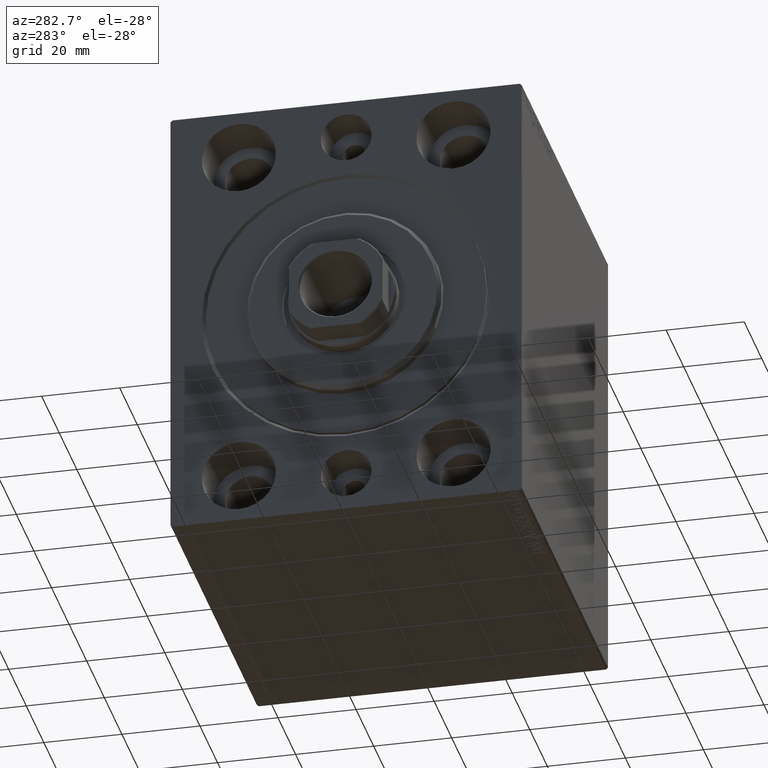
[diagram: clean part render]
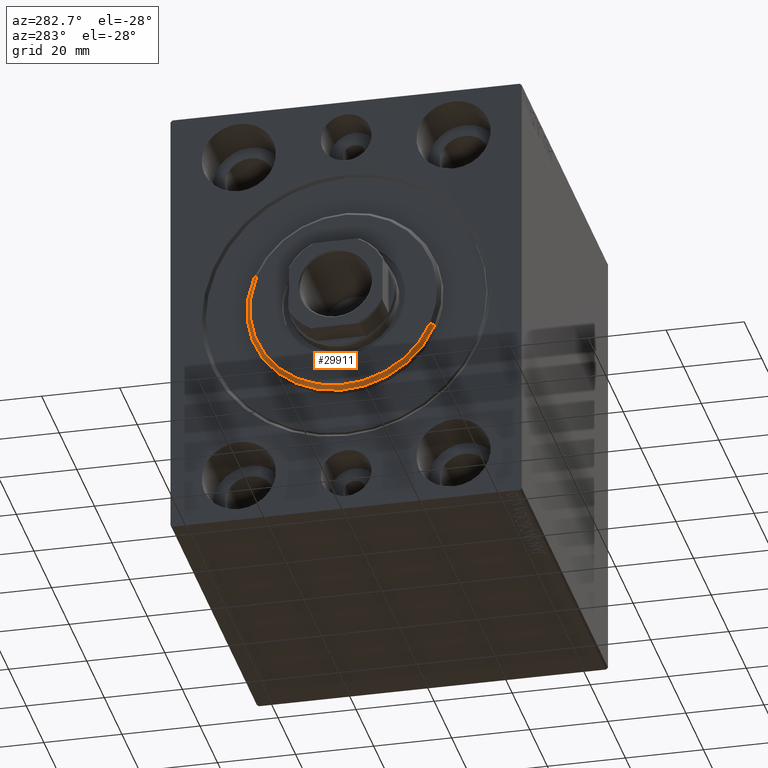
[diagram: same view with one face highlighted and labeled with its STEP entity id]
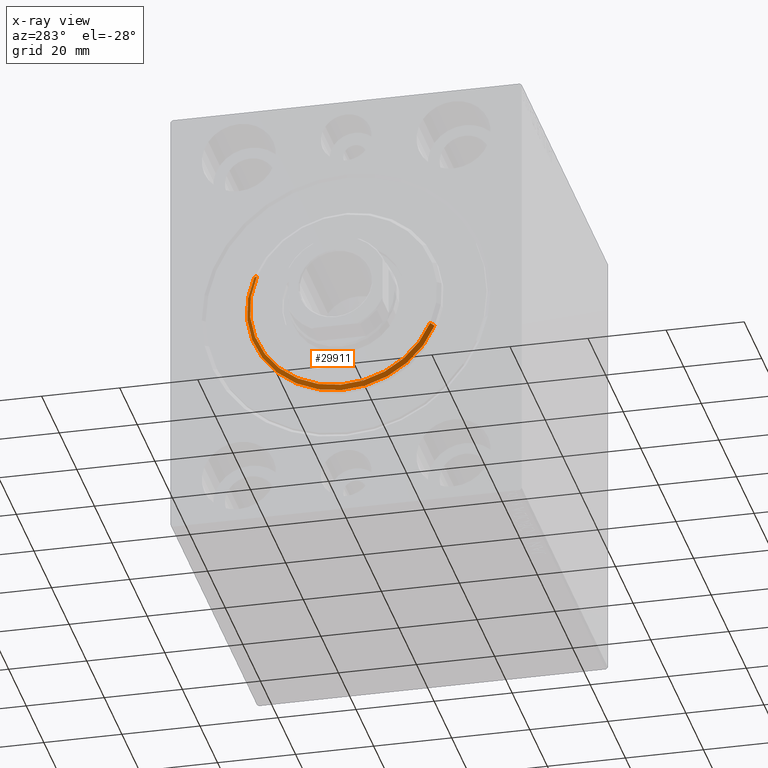
[diagram: x-ray of the same camera — body ghosted, the highlighted face saturated]
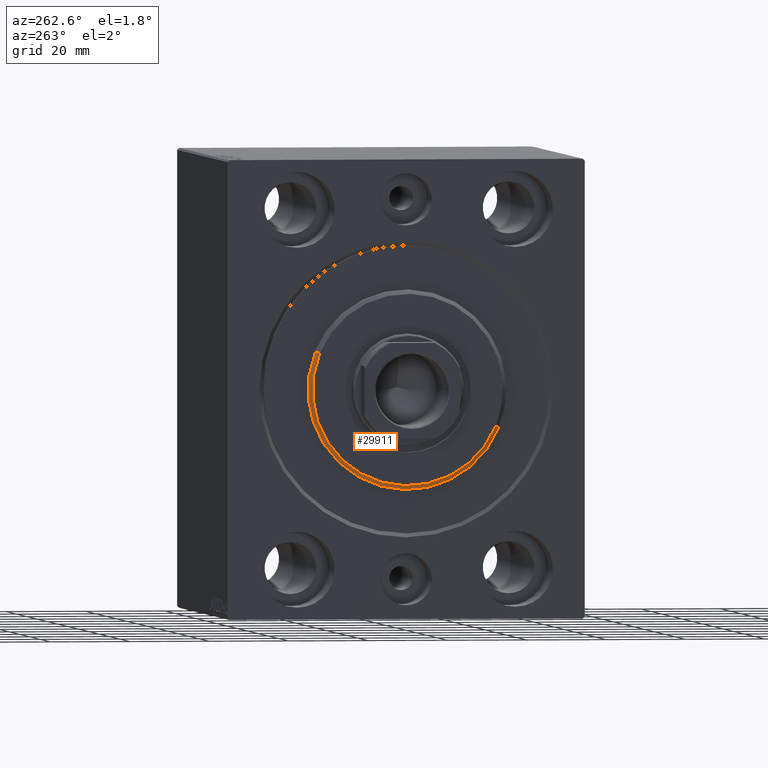
[diagram: same view with one face highlighted and labeled with its STEP entity id]
A machine part, auxiliary view. The second image highlights one B-rep face of the part: STEP entity #29911.
The next image is the same camera in x-ray: the body ghosted, the highlighted face saturated — about 0% of this face is hidden behind the body in this view.
A second angle (auxiliary view) of the same face is appended — the face is thin or edge-on in the first view.
In plain terms, the highlighted conical surface has half-angle 45 deg.
Its self-contained STEP definition (entity closure, byte-faithful):
#1691 = ORIENTED_EDGE ( 'NONE', *, *, #14460, .F. ) ;
#1856 = DIRECTION ( 'NONE',  ( 0.000000000000000000, 0.000000000000000000, 1.000000000000000000 ) ) ;
#2138 = CARTESIAN_POINT ( 'NONE',  ( 3.000000000000000000, 0.000000000000000000, 24.00000000000003553 ) ) ;
#5238 = CARTESIAN_POINT ( 'NONE',  ( 3.000000000000000000, 2.939152317953651839E-15, -24.00000000000003553 ) ) ;
#6228 = VERTEX_POINT ( 'NONE', #40952 ) ;
#7142 = CARTESIAN_POINT ( 'NONE',  ( 2.000000000000030198, 0.000000000000000000, 25.00000000000000000 ) ) ;
#7668 = VECTOR ( 'NONE', #18535, 999.9999999999998863 ) ;
#8130 = CARTESIAN_POINT ( 'NONE',  ( 2.000000000000030198, 0.000000000000000000, 0.000000000000000000 ) ) ;
#8869 = AXIS2_PLACEMENT_3D ( 'NONE', #8130, #18105, #41132 ) ;
#9565 = DIRECTION ( 'NONE',  ( 0.000000000000000000, 0.000000000000000000, -1.000000000000000000 ) ) ;
#10952 = CIRCLE ( 'NONE', #8869, 25.00000000000000000 ) ;
#11284 = VERTEX_POINT ( 'NONE', #22696 ) ;
#14460 = EDGE_CURVE ( 'NONE', #28978, #15641, #10952, .T. ) ;
#14756 = AXIS2_PLACEMENT_3D ( 'NONE', #35534, #18704, #1856 ) ;
#14983 = DIRECTION ( 'NONE',  ( -0.7071067811865489050, 8.659560562354918067E-17, -0.7071067811865462405 ) ) ;
#15641 = VERTEX_POINT ( 'NONE', #40138 ) ;
#16182 = ORIENTED_EDGE ( 'NONE', *, *, #28585, .T. ) ;
#17300 = EDGE_CURVE ( 'NONE', #6228, #11284, #42743, .T. ) ;
#17603 = CONICAL_SURFACE ( 'NONE', #14756, 24.00000000000003553, 0.7853981633974465026 ) ;
#18105 = DIRECTION ( 'NONE',  ( -1.000000000000000000, 0.000000000000000000, 0.000000000000000000 ) ) ;
#18535 = DIRECTION ( 'NONE',  ( -0.7071067811865489050, 0.000000000000000000, 0.7071067811865462405 ) ) ;
#18704 = DIRECTION ( 'NONE',  ( -1.000000000000000000, 0.000000000000000000, 0.000000000000000000 ) ) ;
#18763 = LINE ( 'NONE', #2138, #7668 ) ;
#19186 = ORIENTED_EDGE ( 'NONE', *, *, #17300, .F. ) ;
#22696 = CARTESIAN_POINT ( 'NONE',  ( 3.000000000000000000, 0.000000000000000000, 24.00000000000003553 ) ) ;
#23639 = AXIS2_PLACEMENT_3D ( 'NONE', #26391, #39896, #9565 ) ;
#26061 = VECTOR ( 'NONE', #14983, 999.9999999999998863 ) ;
#26391 = CARTESIAN_POINT ( 'NONE',  ( 3.000000000000000000, 0.000000000000000000, 0.000000000000000000 ) ) ;
#28585 = EDGE_CURVE ( 'NONE', #6228, #15641, #35589, .T. ) ;
#28596 = EDGE_CURVE ( 'NONE', #11284, #28978, #18763, .T. ) ;
#28978 = VERTEX_POINT ( 'NONE', #7142 ) ;
#29911 = ADVANCED_FACE ( 'NONE', ( #39282 ), #17603, .T. ) ;
#35534 = CARTESIAN_POINT ( 'NONE',  ( 3.000000000000000000, 0.000000000000000000, 0.000000000000000000 ) ) ;
#35589 = LINE ( 'NONE', #5238, #26061 ) ;
#39282 = FACE_OUTER_BOUND ( 'NONE', #40018, .T. ) ;
#39896 = DIRECTION ( 'NONE',  ( 1.000000000000000000, -0.000000000000000000, 0.000000000000000000 ) ) ;
#40018 = EDGE_LOOP ( 'NONE', ( #19186, #16182, #1691, #43294 ) ) ;
#40138 = CARTESIAN_POINT ( 'NONE',  ( 2.000000000000030198, 3.061616997868383043E-15, -25.00000000000000000 ) ) ;
#40952 = CARTESIAN_POINT ( 'NONE',  ( 3.000000000000000000, 3.000384657911017441E-15, -24.00000000000003553 ) ) ;
#41132 = DIRECTION ( 'NONE',  ( 0.000000000000000000, 0.000000000000000000, -1.000000000000000000 ) ) ;
#42743 = CIRCLE ( 'NONE', #23639, 24.00000000000003553 ) ;
#43294 = ORIENTED_EDGE ( 'NONE', *, *, #28596, .F. ) ;